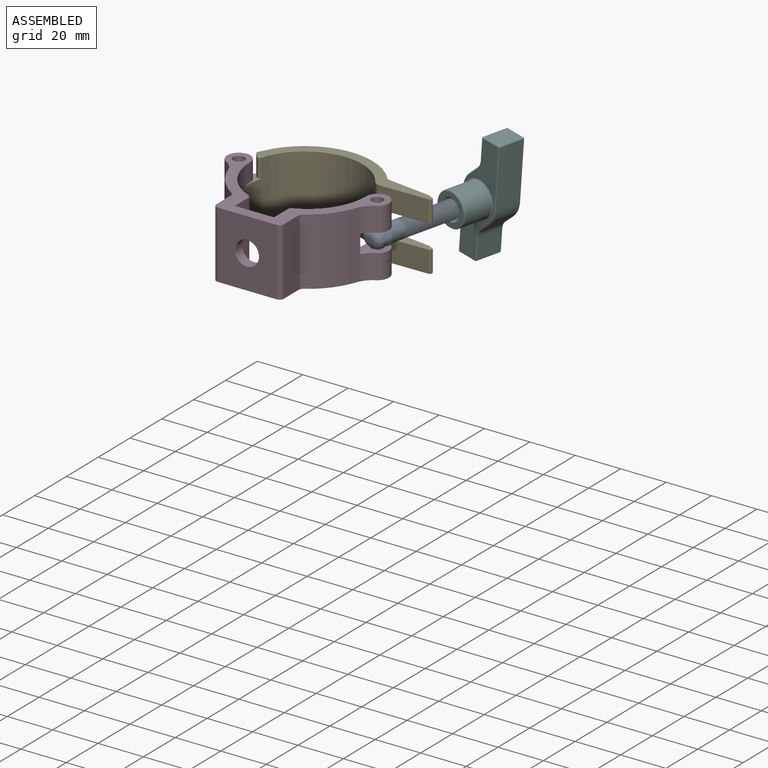
[diagram: assembled view]
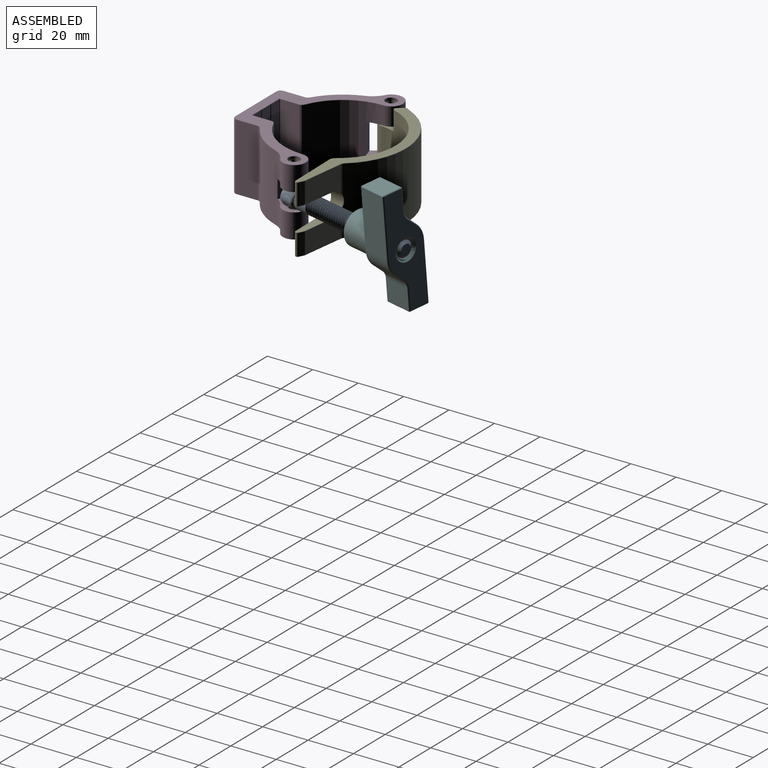
[diagram: assembled view, second angle]
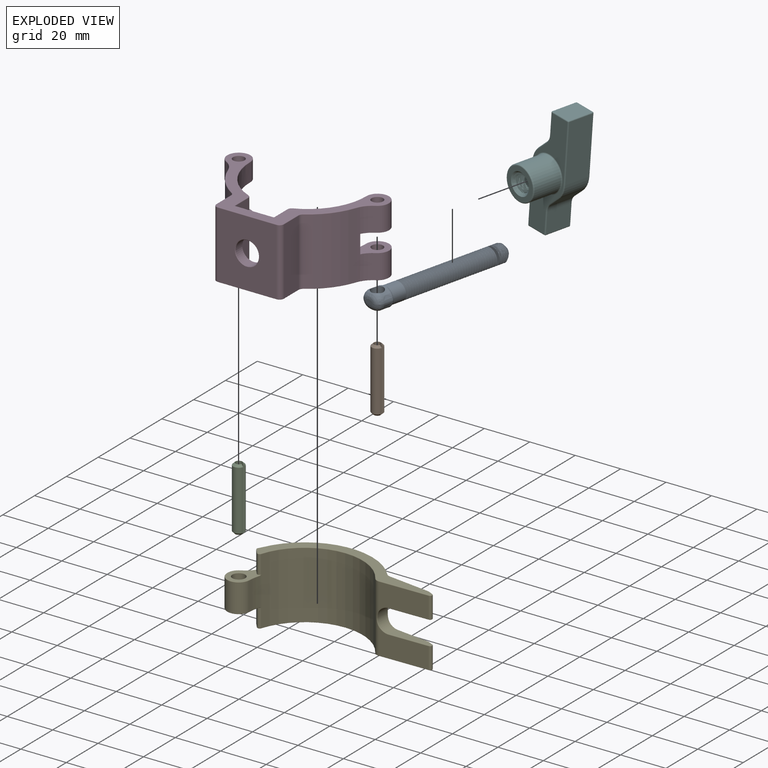
[diagram: exploded view]
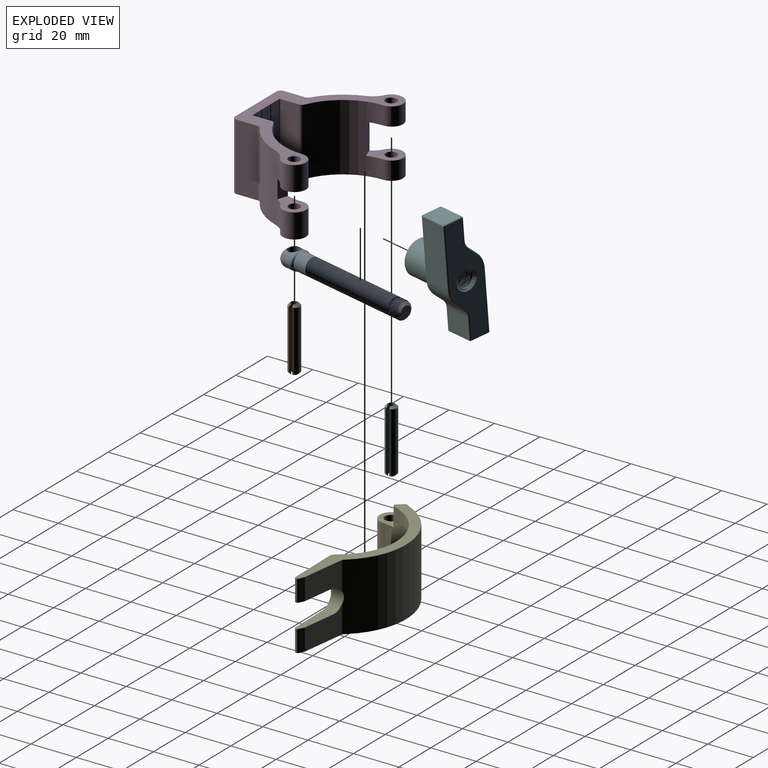
[diagram: exploded view, second angle]
ASSEMBLY  parts=6 mates=5
PART A: 66 faces, bbox 10x65.4x9 mm
  f0: cylinder r=3.9mm len=7.8mm, axis (0,-1,0), area 1.2mm2, adj f1,f38,f64,f65
  f1: cylinder r=3.9mm len=7.8mm, axis (0,-1,0), area 1.2mm2, adj f0,f2,f64,f65
  f2: cylinder r=3.9mm len=7.8mm, axis (0,-1,0), area 1.2mm2, adj f1,f3,f64,f65
  f3: cylinder r=3.9mm len=7.8mm, axis (0,-1,0), area 1.2mm2, adj f2,f4,f64,f65
  f4: cylinder r=3.9mm len=7.8mm, axis (0,-1,0), area 1.2mm2, adj f3,f5,f64,f65
  f5: cylinder r=3.9mm len=7.8mm, axis (0,-1,0), area 1.2mm2, adj f4,f6,f64,f65
  f6: cylinder r=3.9mm len=7.8mm, axis (0,-1,0), area 1.2mm2, adj f5,f7,f64,f65
  f7: cylinder r=3.9mm len=7.8mm, axis (0,-1,0), area 1.2mm2, adj f6,f8,f64,f65
  f8: cylinder r=3.9mm len=7.8mm, axis (0,-1,0), area 1.2mm2, adj f7,f9,f64,f65
  f9: cylinder r=3.9mm len=7.8mm, axis (0,-1,0), area 1.2mm2, adj f8,f10,f64,f65
  f10: cylinder r=3.9mm len=7.8mm, axis (0,-1,0), area 1.2mm2, adj f9,f11,f64,f65
  f11: cylinder r=3.9mm len=7.8mm, axis (0,-1,0), area 1.2mm2, adj f10,f12,f64,f65
  f12: cylinder r=3.9mm len=7.8mm, axis (0,-1,0), area 1.2mm2, adj f11,f13,f64,f65
  f13: cylinder r=3.9mm len=7.8mm, axis (0,-1,0), area 1.2mm2, adj f12,f14,f64,f65
  f14: cylinder r=3.9mm len=7.8mm, axis (0,-1,0), area 1.2mm2, adj f13,f15,f64,f65
  f15: cylinder r=3.9mm len=7.8mm, axis (0,-1,0), area 1.2mm2, adj f14,f16,f64,f65
  f16: cylinder r=3.9mm len=7.8mm, axis (0,-1,0), area 1.2mm2, adj f15,f17,f64,f65
  f17: cylinder r=3.9mm len=7.8mm, axis (0,-1,0), area 1.2mm2, adj f16,f18,f64,f65
  f18: cylinder r=3.9mm len=7.8mm, axis (0,-1,0), area 1.2mm2, adj f17,f19,f64,f65
  f19: cylinder r=3.9mm len=7.8mm, axis (0,-1,0), area 1.2mm2, adj f18,f20,f64,f65
  f20: cylinder r=3.9mm len=7.8mm, axis (0,-1,0), area 1.2mm2, adj f19,f21,f64,f65
  f21: cylinder r=3.9mm len=7.8mm, axis (0,-1,0), area 1.2mm2, adj f20,f22,f64,f65
  f22: cylinder r=3.9mm len=7.8mm, axis (0,-1,0), area 1.2mm2, adj f21,f23,f64,f65
  f23: cylinder r=3.9mm len=7.8mm, axis (0,-1,0), area 1.2mm2, adj f22,f24,f64,f65
  f24: cylinder r=3.9mm len=7.8mm, axis (0,-1,0), area 1.2mm2, adj f23,f25,f64,f65
  f25: cylinder r=3.9mm len=7.8mm, axis (0,-1,0), area 1.2mm2, adj f24,f26,f64,f65
  f26: cylinder r=3.9mm len=7.8mm, axis (0,-1,0), area 1.2mm2, adj f25,f27,f64,f65
  f27: cylinder r=3.9mm len=7.8mm, axis (0,-1,0), area 1.2mm2, adj f26,f28,f64,f65
  f28: cylinder r=3.9mm len=7.8mm, axis (0,-1,0), area 1.2mm2, adj f27,f29,f64,f65
  f29: cylinder r=3.9mm len=7.8mm, axis (0,-1,0), area 1.2mm2, adj f28,f30,f64,f65
  f30: cylinder r=3.9mm len=7.8mm, axis (0,-1,0), area 1.2mm2, adj f29,f31,f64,f65
  f31: cylinder r=3.9mm len=7.8mm, axis (0,-1,0), area 1.2mm2, adj f30,f32,f64,f65
  f32: cylinder r=3.9mm len=7.8mm, axis (0,-1,0), area 1.2mm2, adj f31,f33,f64,f65
  f33: cylinder r=3.9mm len=7.8mm, axis (0,-1,0), area 1.2mm2, adj f32,f34,f64,f65
  f34: cylinder r=3.9mm len=7.8mm, axis (0,-1,0), area 1.2mm2, adj f33,f35,f64,f65
  f35: cylinder r=3.9mm len=7.8mm, axis (0,-1,0), area 1.2mm2, adj f34,f36,f64,f65
  f36: cylinder r=3.9mm len=7.8mm, axis (0,-1,0), area 1.2mm2, adj f35,f37,f64,f65
  f37: cylinder r=3.9mm len=1.17mm, axis (0,-1,0), area 0mm2, adj f36,f61,f64,f65
  f38: cylinder r=3.9mm len=7.8mm, axis (0,-1,0), area 1.2mm2, adj f0,f39,f64,f65
  f39: cylinder r=3.9mm len=7.99mm, axis (0,-1,0), area 158.4mm2, adj f38,f42,f43,f53,f56,f57,f59,f63
  f40: plane 4.8x4.8mm, normal (0,1,0), area 18.1mm2, adj f61
  f41: plane 3.81x1.8mm, normal (0,-1,0), area 5.7mm2, adj f49,f50,f51,f52
  f42: plane 0.6x0.06mm, normal (0,1,0), area 0mm2, adj f39,f54,f55
  f43: plane 0.6x0.06mm, normal (0,1,0), area 0mm2, adj f39,f58,f60
  f44: cylinder r=2.75mm len=7.8mm, axis (0,0,1), area 123.4mm2, adj f45,f46,f47,f48,f49,f50,f51,f52
  f45: bspline ~8.8x5mm, area 20.8mm2, adj f44,f46,f47,f49,f53,f54
  f46: bspline ~8.8x5mm, area 20.8mm2, adj f44,f45,f48,f51,f57,f58
  f47: bspline ~8.8x5mm, area 20.8mm2, adj f44,f45,f48,f50,f55,f56
  f48: bspline ~8.8x5mm, area 20.8mm2, adj f44,f46,f47,f52,f59,f60
  f49: bspline ~5.23x4.5mm, area 22.4mm2, adj f41,f44,f45,f50,f51
  f50: bspline ~5.31x4.45mm, area 22.4mm2, adj f41,f44,f47,f49,f52
  f51: bspline ~5.31x4.45mm, area 22.4mm2, adj f41,f44,f46,f49,f52
  f52: bspline ~5.23x4.5mm, area 22.4mm2, adj f41,f44,f48,f50,f51
  f53: bspline ~4.98x4.2mm, area 4.1mm2, adj f39,f45,f54
  f54: bspline ~1.36x1.15mm, area 0.7mm2, adj f42,f45,f53,f55
  f55: bspline ~1.23x1.14mm, area 0.7mm2, adj f42,f47,f54,f56
  f56: bspline ~4.87x3.6mm, area 6.2mm2, adj f39,f47,f55
  f57: bspline ~4.98x4.2mm, area 4.1mm2, adj f39,f46,f58
  f58: bspline ~1.23x1.14mm, area 0.7mm2, adj f43,f46,f57,f60
  f59: bspline ~4.87x3.6mm, area 6.2mm2, adj f39,f48,f60
  f60: bspline ~1.36x1.15mm, area 0.7mm2, adj f43,f48,f58,f59
  f61: cone r=3.9mm half-angle=45deg, axis (0,-1,0), area 26.6mm2, adj f37,f40,f62,f64,f65
  f62: plane 0.33x0.24mm, normal (0,0,-1), area 0mm2, adj f61,f64,f65
  f63: plane 1.2x1.04mm, normal (0,0,1), area 0.6mm2, adj f39,f64,f65
  f64: bspline ~50.6x9.01mm, area 1005.9mm2, adj f0,f1,f2,f3,f4,f5,f6,f7
  f65: bspline ~50.6x9.01mm, area 1018.7mm2, adj f0,f1,f2,f3,f4,f5,f6,f7
PART B: 8 faces, bbox 4.9x5x28 mm
  f0: cylinder r=1.5mm len=28mm, axis (0,0,-1), area 241.2mm2, adj f1,f3,f4,f5
  f1: plane 28.01x0.95mm, normal (0.35,-0.94,0), area 27.3mm2, adj f0,f2,f4,f5,f6,f7
  f2: cylinder r=2.5mm len=26.2mm, axis (0,0,-1), area 371.6mm2, adj f1,f3,f6,f7
  f3: plane 28.01x0.95mm, normal (0.35,0.94,0), area 27.3mm2, adj f0,f2,f4,f5,f6,f7
  f4: plane 3.2x3.14mm, normal (0,0,1), area 0.9mm2, adj f0,f1,f3,f7
  f5: plane 3.2x3.14mm, normal (0,0,-1), area 0.9mm2, adj f0,f1,f3,f6
  f6: cone r=2.5mm half-angle=45deg, axis (0,0,1), area 14.9mm2, adj f1,f2,f3,f5
  f7: cone r=1.6mm half-angle=45deg, axis (0,0,-1), area 14.9mm2, adj f1,f2,f3,f4
PART C: same geometry as B
PART D: 141 faces, bbox 72.1x44.1x29.8 mm
  f0: cylinder r=5.15mm len=10.65mm, axis (0,0,-1), area 145.2mm2, adj f2,f30,f42,f85
  f1: cylinder r=2.5mm len=10.65mm, axis (0,0,-1), area 167.3mm2, adj f42,f122
  f2: cylinder r=5mm len=10.65mm, axis (0,0,1), area 83.8mm2, adj f0,f19,f42,f90
  f3: cylinder r=5.15mm len=9.68mm, axis (0,0,-1), area 108.4mm2, adj f5,f29,f41,f61
  f4: cylinder r=2.5mm len=7.95mm, axis (0,0,-1), area 124.9mm2, adj f41,f121
  f5: cylinder r=5mm len=7.95mm, axis (0,0,1), area 62.5mm2, adj f3,f11,f41,f65
  f6: cylinder r=0.15mm len=10.4mm, axis (0,0,-1), area 3mm2, adj f110,f116,f119,f129
  f7: cylinder r=0.15mm len=10.4mm, axis (0,0,-1), area 3mm2, adj f87,f96,f97,f137
  f8: plane 10.03x5.23mm, normal (0,1,0), area 50mm2, adj f102,f110,f111,f125
  f9: cylinder r=0.15mm len=10.4mm, axis (0,0,-1), area 3mm2, adj f92,f102,f103,f126
  f10: cylinder r=0.15mm len=10.4mm, axis (0,0,-1), area 3mm2, adj f68,f75,f76,f134
  f11: cylinder r=25.5mm len=29.4mm, axis (0,0,-1), area 786.3mm2, adj f5,f32,f37,f40,f41,f45,f60,f72
  f12: cylinder r=5.15mm len=9.68mm, axis (0,0,-1), area 108.4mm2, adj f29,f37,f40,f52
  f13: cylinder r=30mm len=29.4mm, axis (0,0,-1), area 595.3mm2, adj f29,f31,f47,f53
  f14: plane 29.4x9.23mm, normal (-1,0,0), area 271.3mm2, adj f31,f33,f48,f54
  f15: plane 29.4x25.8mm, normal (0,-1,0), area 668.6mm2, adj f33,f34,f55,f62,f140
  f16: plane 29.4x9.23mm, normal (1,0,0), area 271.3mm2, adj f34,f35,f63,f73
  f17: cylinder r=30mm len=29.4mm, axis (0,0,-1), area 595.3mm2, adj f30,f35,f74,f84
  f18: cylinder r=5.15mm len=10.65mm, axis (0,0,-1), area 145.2mm2, adj f30,f38,f43,f94
  f19: cylinder r=25.5mm len=29.4mm, axis (0,0,-1), area 825.6mm2, adj f2,f36,f38,f42,f43,f44,f95,f104
  f20: plane 29.4x8.23mm, normal (-1,0,0), area 241.8mm2, adj f36,f105,f112,f113
  f21: plane 29.4x5.21mm, normal (0,1,0), area 140.3mm2, adj f97,f106,f113,f117,f119,f133
  f22: plane 10.03x5.23mm, normal (0,1,0), area 50mm2, adj f76,f86,f87,f138
  f23: plane 29.4x5.21mm, normal (0,1,0), area 140.3mm2, adj f68,f70,f82,f92,f93,f130
  f24: cylinder r=2.5mm len=10.65mm, axis (0,0,-1), area 167.3mm2, adj f43,f120
  f25: plane 29.4x8.23mm, normal (1,0,0), area 241.8mm2, adj f32,f71,f82,f83
  f26: cylinder r=2.5mm len=7.95mm, axis (0,0,-1), area 124.9mm2, adj f40,f123
  f27: plane 70.9x43.15mm, normal (0,0,1), area 569.8mm2, adj f46,f47,f48,f49,f51,f52,f55,f56
  f28: plane 70.9x43.15mm, normal (0,0,-1), area 569.8mm2, adj f50,f53,f54,f57,f58,f61,f62,f65
  f29: cylinder r=10mm len=29.4mm, axis (0,0,1), area 138.6mm2, adj f3,f12,f13,f40,f41,f45,f49,f57
  f30: cylinder r=10mm len=29.4mm, axis (0,0,1), area 169.6mm2, adj f0,f17,f18,f42,f43,f44,f80,f89
  f31: cylinder r=2mm len=29.4mm, axis (0,0,-1), area 59.6mm2, adj f13,f14,f46,f50
  f32: cylinder r=2mm len=29.4mm, axis (0,0,-1), area 69.1mm2, adj f11,f25,f64,f78
  f33: cylinder r=2mm len=29.4mm, axis (0,0,-1), area 92.4mm2, adj f14,f15,f51,f58
  f34: cylinder r=2mm len=29.4mm, axis (0,0,-1), area 92.4mm2, adj f15,f16,f59,f66
  f35: cylinder r=2mm len=29.4mm, axis (0,0,-1), area 59.6mm2, adj f16,f17,f67,f79
  f36: cylinder r=2mm len=29.4mm, axis (0,0,-1), area 69.1mm2, adj f19,f20,f100,f108
  f37: cylinder r=5mm len=7.95mm, axis (0,0,1), area 62.5mm2, adj f11,f12,f40,f56
  f38: cylinder r=5mm len=10.65mm, axis (0,0,1), area 83.8mm2, adj f18,f19,f43,f99
  f39: cylinder r=5.15mm len=10.3mm, axis (0,1,0), area 135.9mm2, adj f125,f126,f129,f130,f133,f134,f137,f138
  f40: plane 13.67x11.15mm, normal (0,0,-1), area 84.8mm2, adj f11,f12,f26,f29,f37,f45
  f41: plane 13.67x11.15mm, normal (0,0,1), area 84.8mm2, adj f3,f4,f5,f11,f29,f45
  f42: plane 13.67x11.15mm, normal (0,0,-1), area 84.8mm2, adj f0,f1,f2,f19,f30,f44
  f43: plane 13.67x11.15mm, normal (0,0,1), area 84.8mm2, adj f18,f19,f24,f30,f38,f44
  f44: plane 8.1x4.44mm, normal (0.31,0.95,0), area 37.9mm2, adj f19,f30,f42,f43
  f45: plane 13.5x4.44mm, normal (-0.31,0.95,0), area 63.1mm2, adj f11,f29,f40,f41
  f46: torus R=2.2mm, axis (0,0,1), area 0.7mm2, adj f27,f31,f47,f48
  f47: torus R=29.8mm, axis (0,0,1), area 6.3mm2, adj f13,f27,f46,f49
  f48: cylinder r=0.2mm len=9.23mm, axis (0,1,0), area 2.9mm2, adj f14,f27,f46,f51
  f49: torus R=10.2mm, axis (0,0,1), area 2.3mm2, adj f27,f29,f47,f52
  f50: torus R=2.2mm, axis (0,0,1), area 0.7mm2, adj f28,f31,f53,f54
  f51: torus R=1.8mm, axis (0,0,1), area 1mm2, adj f27,f33,f48,f55
  f52: torus R=4.95mm, axis (0,0,1), area 4.2mm2, adj f12,f27,f49,f56
  f53: torus R=29.8mm, axis (0,0,1), area 6.3mm2, adj f13,f28,f50,f57
  f54: cylinder r=0.2mm len=9.23mm, axis (0,-1,0), area 2.9mm2, adj f14,f28,f50,f58
  f55: cylinder r=0.2mm len=25.8mm, axis (-1,0,0), area 8.1mm2, adj f15,f27,f51,f59
  f56: torus R=4.8mm, axis (0,0,1), area 2.4mm2, adj f27,f37,f52,f60
  f57: torus R=10.2mm, axis (0,0,1), area 2.3mm2, adj f28,f29,f53,f61
  f58: torus R=1.8mm, axis (0,0,1), area 1mm2, adj f28,f33,f54,f62
  f59: torus R=1.8mm, axis (0,0,1), area 1mm2, adj f27,f34,f55,f63
  f60: torus R=25.7mm, axis (0,0,1), area 9.5mm2, adj f11,f27,f56,f64
  f61: torus R=4.95mm, axis (0,0,1), area 4.2mm2, adj f3,f28,f57,f65
  f62: cylinder r=0.2mm len=25.8mm, axis (1,0,0), area 8.1mm2, adj f15,f28,f58,f66
  f63: cylinder r=0.2mm len=9.23mm, axis (0,-1,0), area 2.9mm2, adj f16,f27,f59,f67
  f64: torus R=1.8mm, axis (0,0,1), area 0.7mm2, adj f27,f32,f60,f71
  f65: torus R=4.8mm, axis (0,0,1), area 2.4mm2, adj f5,f28,f61,f72
  f66: torus R=1.8mm, axis (0,0,1), area 1mm2, adj f28,f34,f62,f73
  f67: torus R=2.2mm, axis (0,0,1), area 0.7mm2, adj f27,f35,f63,f74
  f68: cylinder r=0.2mm len=10.4mm, axis (0,0,-1), area 2mm2, adj f10,f23,f69,f132
  f69: sphere r=0.2mm, area 0mm2, adj f68,f70,f75
  f70: cylinder r=0.2mm len=5.21mm, axis (1,0,0), area 1.6mm2, adj f23,f27,f69,f77
  f71: cylinder r=0.2mm len=8.23mm, axis (0,-1,0), area 2.6mm2, adj f25,f27,f64,f77
  f72: torus R=25.7mm, axis (0,0,1), area 9.5mm2, adj f11,f28,f65,f78
  f73: cylinder r=0.2mm len=9.23mm, axis (0,1,0), area 2.9mm2, adj f16,f28,f66,f79
  f74: torus R=29.8mm, axis (0,0,1), area 6.3mm2, adj f17,f27,f67,f80
  f75: torus R=0.35mm, axis (0,0,1), area 0.1mm2, adj f10,f27,f69,f81
  f76: cylinder r=0.2mm len=10.03mm, axis (0,0,-1), area 1.9mm2, adj f10,f22,f81,f136
  f77: torus R=0.4mm, axis (0,0,1), area 0.1mm2, adj f27,f70,f71,f82
  f78: torus R=1.8mm, axis (0,0,1), area 0.7mm2, adj f28,f32,f72,f83
  f79: torus R=2.2mm, axis (0,0,1), area 0.7mm2, adj f28,f35,f73,f84
  f80: torus R=10.2mm, axis (0,0,1), area 2.3mm2, adj f27,f30,f74,f85
  f81: sphere r=0.2mm, area 0mm2, adj f75,f76,f86
  f82: cylinder r=0.2mm len=29.4mm, axis (0,0,1), area 9.2mm2, adj f23,f25,f77,f88
  f83: cylinder r=0.2mm len=8.23mm, axis (0,1,0), area 2.6mm2, adj f25,f28,f78,f88
  f84: torus R=29.8mm, axis (0,0,1), area 6.3mm2, adj f17,f28,f79,f89
  f85: torus R=4.95mm, axis (0,0,1), area 4.2mm2, adj f0,f27,f80,f90
  f86: cylinder r=0.2mm len=5.23mm, axis (1,0,0), area 1.6mm2, adj f22,f27,f81,f91
  f87: cylinder r=0.2mm len=10.03mm, axis (0,0,-1), area 1.9mm2, adj f7,f22,f91,f139
  f88: torus R=0.4mm, axis (0,0,1), area 0.1mm2, adj f28,f82,f83,f93
  f89: torus R=10.2mm, axis (0,0,1), area 2.3mm2, adj f28,f30,f84,f94
  f90: torus R=4.8mm, axis (0,0,1), area 2.4mm2, adj f2,f27,f85,f95
  f91: sphere r=0.2mm, area 0mm2, adj f86,f87,f96
  f92: cylinder r=0.2mm len=10.4mm, axis (0,0,-1), area 2mm2, adj f9,f23,f98,f128
  f93: cylinder r=0.2mm len=5.21mm, axis (-1,0,0), area 1.6mm2, adj f23,f28,f88,f98
  f94: torus R=4.95mm, axis (0,0,1), area 4.2mm2, adj f18,f28,f89,f99
  f95: torus R=25.7mm, axis (0,0,1), area 9.5mm2, adj f19,f27,f90,f100
  f96: torus R=0.35mm, axis (0,0,1), area 0.1mm2, adj f7,f27,f91,f101
  f97: cylinder r=0.2mm len=10.4mm, axis (0,0,-1), area 2mm2, adj f7,f21,f101,f135
  f98: sphere r=0.2mm, area 0mm2, adj f92,f93,f103
  f99: torus R=4.8mm, axis (0,0,1), area 2.4mm2, adj f28,f38,f94,f104
  f100: torus R=1.8mm, axis (0,0,1), area 0.7mm2, adj f27,f36,f95,f105
  f101: sphere r=0.2mm, area 0mm2, adj f96,f97,f106
  f102: cylinder r=0.2mm len=10.03mm, axis (0,0,-1), area 1.9mm2, adj f8,f9,f107,f124
  f103: torus R=0.35mm, axis (0,0,1), area 0.1mm2, adj f9,f28,f98,f107
  f104: torus R=25.7mm, axis (0,0,1), area 9.5mm2, adj f19,f28,f99,f108
  f105: cylinder r=0.2mm len=8.23mm, axis (0,1,0), area 2.6mm2, adj f20,f27,f100,f109
  f106: cylinder r=0.2mm len=5.21mm, axis (1,0,0), area 1.6mm2, adj f21,f27,f101,f109
  f107: sphere r=0.2mm, area 0mm2, adj f102,f103,f111
  f108: torus R=1.8mm, axis (0,0,1), area 0.7mm2, adj f28,f36,f104,f112
  f109: torus R=0.4mm, axis (0,0,1), area 0.1mm2, adj f27,f105,f106,f113
  f110: cylinder r=0.2mm len=10.03mm, axis (0,0,-1), area 1.9mm2, adj f6,f8,f114,f127
  f111: cylinder r=0.2mm len=5.23mm, axis (-1,0,0), area 1.6mm2, adj f8,f28,f107,f114
  f112: cylinder r=0.2mm len=8.23mm, axis (0,-1,0), area 2.6mm2, adj f20,f28,f108,f115
  f113: cylinder r=0.2mm len=29.4mm, axis (0,0,1), area 9.2mm2, adj f20,f21,f109,f115
  f114: sphere r=0.2mm, area 0mm2, adj f110,f111,f116
  f115: torus R=0.4mm, axis (0,0,1), area 0.1mm2, adj f28,f112,f113,f117
  f116: torus R=0.35mm, axis (0,0,1), area 0.1mm2, adj f6,f28,f114,f118
  f117: cylinder r=0.2mm len=5.21mm, axis (-1,0,0), area 1.6mm2, adj f21,f28,f115,f118
  f118: sphere r=0.2mm, area 0mm2, adj f116,f117,f119
  f119: cylinder r=0.2mm len=10.4mm, axis (0,0,-1), area 2mm2, adj f6,f21,f118,f131
  f120: torus R=2.7mm, axis (0,0,1), area 5.1mm2, adj f24,f28
  f121: torus R=2.7mm, axis (0,0,1), area 5.1mm2, adj f4,f28
  f122: torus R=2.7mm, axis (0,0,1), area 5.1mm2, adj f1,f27
  f123: torus R=2.7mm, axis (0,0,1), area 5.1mm2, adj f26,f27
  f124: bspline ~0.26x0.2mm, area 0mm2, adj f102,f125,f126
  f125: cone r=5.35mm half-angle=45deg, axis (0,1,0), area 1.5mm2, adj f8,f39,f124,f127
  f126: bspline ~0.55x0.53mm, area 0.2mm2, adj f9,f39,f124,f128
  f127: bspline ~0.26x0.2mm, area 0mm2, adj f110,f125,f129
  f128: bspline ~0.2x0.16mm, area 0mm2, adj f92,f126,f130
  f129: bspline ~0.55x0.53mm, area 0.2mm2, adj f6,f39,f127,f131
  f130: cone r=5.35mm half-angle=45deg, axis (0,1,0), area 2.8mm2, adj f23,f39,f128,f132
  f131: bspline ~0.2x0.16mm, area 0mm2, adj f119,f129,f133
  f132: bspline ~0.2x0.16mm, area 0mm2, adj f68,f130,f134
  f133: cone r=5.35mm half-angle=45deg, axis (0,1,0), area 2.8mm2, adj f21,f39,f131,f135
  f134: bspline ~0.55x0.53mm, area 0.2mm2, adj f10,f39,f132,f136
  f135: bspline ~0.2x0.16mm, area 0mm2, adj f97,f133,f137
  f136: bspline ~0.26x0.2mm, area 0mm2, adj f76,f134,f138
  f137: bspline ~0.55x0.53mm, area 0.2mm2, adj f7,f39,f135,f139
  f138: cone r=5.35mm half-angle=45deg, axis (0,1,0), area 1.5mm2, adj f22,f39,f136,f139
  f139: bspline ~0.26x0.2mm, area 0mm2, adj f87,f137,f138
  f140: cone r=5.35mm half-angle=45deg, axis (0,-1,0), area 9.3mm2, adj f15,f39
PART E: 99 faces, bbox 81.5x38x29.8 mm
  f0: plane 8.1x2.31mm, normal (-0.73,-0.68,0), area 25.7mm2, adj f30,f31,f48,f62
  f1: plane 18.78x10.88mm, normal (0.06,1,0), area 177.7mm2, adj f6,f18,f70,f91,f93
  f2: plane 21.52x11.45mm, normal (0.09,-1,0), area 204.7mm2, adj f3,f19,f69,f92,f94
  f3: cylinder r=1mm len=9.35mm, axis (0,0,-1), area 13.9mm2, adj f2,f5,f67,f96
  f4: plane 9.35x2.22mm, normal (0.37,0.93,0), area 22.3mm2, adj f5,f6,f66,f97
  f5: cylinder r=1mm len=9.35mm, axis (0,0,-1), area 10.2mm2, adj f3,f4,f65,f98
  f6: cylinder r=1mm len=9.35mm, axis (0,0,-1), area 2.9mm2, adj f1,f4,f68,f95
  f7: plane 18.78x10.88mm, normal (0.06,1,0), area 177.7mm2, adj f17,f18,f57,f85,f87
  f8: cylinder r=30mm len=49.55mm, axis (0,0,-1), area 1772.8mm2, adj f18,f27,f61,f74
  f9: plane 8.1x2.31mm, normal (-0.73,-0.68,0), area 25.7mm2, adj f29,f32,f40,f77
  f10: cylinder r=25.5mm len=45.77mm, axis (0,0,-1), area 1767.3mm2, adj f19,f28,f31,f32,f37,f39,f47,f49
  f11: plane 21.52x11.45mm, normal (0.09,-1,0), area 204.7mm2, adj f14,f19,f54,f86,f88
  f12: plane 73.9x24.47mm, normal (0,0,1), area 343.5mm2, adj f65,f66,f67,f68,f69,f70,f71,f72
  f13: plane 73.9x24.47mm, normal (0,0,-1), area 343.5mm2, adj f51,f52,f53,f54,f55,f56,f57,f58
  f14: cylinder r=1mm len=9.35mm, axis (0,0,-1), area 13.9mm2, adj f11,f16,f52,f84
  f15: plane 9.35x2.22mm, normal (0.37,0.93,0), area 22.3mm2, adj f16,f17,f53,f81
  f16: cylinder r=1mm len=9.35mm, axis (0,0,-1), area 10.2mm2, adj f14,f15,f51,f82
  f17: cylinder r=1mm len=9.35mm, axis (0,0,-1), area 2.9mm2, adj f7,f15,f55,f83
  f18: cylinder r=3mm len=29.4mm, axis (0,0,-1), area 56.7mm2, adj f1,f7,f8,f59,f72,f89
  f19: cylinder r=3mm len=29.4mm, axis (0,0,-1), area 83.5mm2, adj f2,f10,f11,f56,f71,f90
  f20: plane 18x4.78mm, normal (0,0,-1), area 60.7mm2, adj f22,f93,f94,f95,f96,f97,f98
  f21: plane 18x4.78mm, normal (0,0,1), area 60.7mm2, adj f22,f81,f82,f83,f84,f85,f86
  f22: cylinder r=5.15mm len=10.3mm, axis (0,-1,0), area 86.4mm2, adj f20,f21,f87,f88,f89,f90,f91,f92
  f23: cylinder r=5.15mm len=12.4mm, axis (0,0,-1), area 166.2mm2, adj f27,f28,f33,f43
  f24: plane 13.03x10.26mm, normal (0,0,1), area 61.9mm2, adj f33,f34,f35,f37,f38,f40,f41,f79
  f25: plane 13.03x10.26mm, normal (0,0,-1), area 61.9mm2, adj f42,f43,f45,f46,f47,f48,f50,f80
  f26: cylinder r=2.8mm len=12.4mm, axis (0,0,-1), area 218.2mm2, adj f79,f80
  f27: cylinder r=12mm len=29.4mm, axis (0,0,1), area 129.7mm2, adj f8,f23,f29,f30,f34,f36,f42,f44
  f28: cylinder r=5mm len=12.4mm, axis (0,0,1), area 97.5mm2, adj f10,f23,f35,f45
  f29: cylinder r=1mm len=8.1mm, axis (0,0,1), area 10.2mm2, adj f9,f27,f38,f78
  f30: cylinder r=1mm len=8.1mm, axis (0,0,1), area 10.2mm2, adj f0,f27,f46,f64
  f31: cylinder r=1mm len=8.1mm, axis (0,0,-1), area 17.4mm2, adj f0,f10,f50,f60
  f32: cylinder r=1mm len=8.1mm, axis (0,0,-1), area 17.4mm2, adj f9,f10,f41,f75
  f33: torus R=4.95mm, axis (0,0,1), area 4.2mm2, adj f23,f24,f34,f35
  f34: torus R=12.2mm, axis (0,0,1), area 1.7mm2, adj f24,f27,f33,f36
  f35: torus R=4.8mm, axis (0,0,1), area 2.4mm2, adj f24,f28,f33,f37
  f36: bspline ~0.93x0.51mm, area 0.1mm2, adj f27,f34,f38
  f37: torus R=25.7mm, axis (0,0,1), area 1.6mm2, adj f10,f24,f35,f39
  f38: torus R=1.2mm, axis (0,0,1), area 0.3mm2, adj f24,f29,f36,f40
  f39: bspline ~0.98x0.43mm, area 0.1mm2, adj f10,f37,f41
  f40: cylinder r=0.2mm len=2.45mm, axis (0.68,-0.73,0), area 1mm2, adj f9,f24,f38,f41
  f41: torus R=1.2mm, axis (0,0,1), area 0.6mm2, adj f24,f32,f39,f40
  f42: torus R=12.2mm, axis (0,0,1), area 1.7mm2, adj f25,f27,f43,f44
  f43: torus R=4.95mm, axis (0,0,1), area 4.2mm2, adj f23,f25,f42,f45
  f44: bspline ~0.93x0.51mm, area 0.1mm2, adj f27,f42,f46
  f45: torus R=4.8mm, axis (0,0,1), area 2.4mm2, adj f25,f28,f43,f47
  f46: torus R=1.2mm, axis (0,0,1), area 0.3mm2, adj f25,f30,f44,f48
  f47: torus R=25.7mm, axis (0,0,1), area 1.6mm2, adj f10,f25,f45,f49
  f48: cylinder r=0.2mm len=2.45mm, axis (-0.68,0.73,0), area 1mm2, adj f0,f25,f46,f50
  f49: bspline ~0.98x0.43mm, area 0.1mm2, adj f10,f47,f50
  f50: torus R=1.2mm, axis (0,0,1), area 0.6mm2, adj f25,f31,f48,f49
  f51: torus R=0.8mm, axis (0,0,1), area 0.3mm2, adj f13,f16,f52,f53
  f52: torus R=0.8mm, axis (0,0,1), area 0.4mm2, adj f13,f14,f51,f54
  f53: cylinder r=0.2mm len=2.29mm, axis (0.93,-0.37,0), area 0.7mm2, adj f13,f15,f51,f55
  f54: cylinder r=0.2mm len=21.54mm, axis (1,0.09,0), area 6.8mm2, adj f11,f13,f52,f56
  f55: torus R=0.8mm, axis (0,0,1), area 0.1mm2, adj f13,f17,f53,f57
  f56: torus R=2.8mm, axis (0,0,1), area 0.9mm2, adj f13,f19,f54,f58
  f57: cylinder r=0.2mm len=18.8mm, axis (-1,0.06,0), area 5.9mm2, adj f7,f13,f55,f59
  f58: torus R=25.7mm, axis (0,0,1), area 18.1mm2, adj f10,f13,f56,f60
  f59: torus R=3.2mm, axis (0,0,1), area 0.7mm2, adj f13,f18,f57,f61
  f60: torus R=0.8mm, axis (0,0,1), area 0.6mm2, adj f13,f31,f58,f62
  f61: torus R=29.8mm, axis (0,0,1), area 18.9mm2, adj f8,f13,f59,f63
  f62: cylinder r=0.2mm len=2.45mm, axis (0.68,-0.73,0), area 1mm2, adj f0,f13,f60,f64
  f63: torus R=12.2mm, axis (0,0,1), area 0.5mm2, adj f13,f27,f61,f64
  f64: torus R=0.8mm, axis (0,0,1), area 0.4mm2, adj f13,f30,f62,f63
  f65: torus R=0.8mm, axis (0,0,1), area 0.3mm2, adj f5,f12,f66,f67
  f66: cylinder r=0.2mm len=2.29mm, axis (0.93,-0.37,0), area 0.7mm2, adj f4,f12,f65,f68
  f67: torus R=0.8mm, axis (0,0,1), area 0.4mm2, adj f3,f12,f65,f69
  f68: torus R=0.8mm, axis (0,0,1), area 0.1mm2, adj f6,f12,f66,f70
  f69: cylinder r=0.2mm len=21.54mm, axis (-1,-0.09,0), area 6.8mm2, adj f2,f12,f67,f71
  f70: cylinder r=0.2mm len=18.8mm, axis (1,-0.06,0), area 5.9mm2, adj f1,f12,f68,f72
  f71: torus R=2.8mm, axis (0,0,1), area 0.9mm2, adj f12,f19,f69,f73
  f72: torus R=3.2mm, axis (0,0,1), area 0.7mm2, adj f12,f18,f70,f74
  f73: torus R=25.7mm, axis (0,0,1), area 18.1mm2, adj f10,f12,f71,f75
  f74: torus R=29.8mm, axis (0,0,1), area 18.9mm2, adj f8,f12,f72,f76
  f75: torus R=0.8mm, axis (0,0,1), area 0.6mm2, adj f12,f32,f73,f77
  f76: torus R=12.2mm, axis (0,0,1), area 0.5mm2, adj f12,f27,f74,f78
  f77: cylinder r=0.2mm len=2.45mm, axis (-0.68,0.73,0), area 1mm2, adj f9,f12,f75,f78
  f78: torus R=0.8mm, axis (0,0,1), area 0.4mm2, adj f12,f29,f76,f77
  f79: torus R=3mm, axis (0,0,1), area 5.7mm2, adj f24,f26
  f80: torus R=3mm, axis (0,0,1), area 5.7mm2, adj f25,f26
  f81: cylinder r=0.2mm len=2.29mm, axis (-0.93,0.37,0), area 0.7mm2, adj f15,f21,f82,f83
  f82: torus R=0.8mm, axis (0,0,-1), area 0.3mm2, adj f16,f21,f81,f84
  f83: torus R=0.8mm, axis (0,0,-1), area 0.1mm2, adj f17,f21,f81,f85
  f84: torus R=0.8mm, axis (0,0,-1), area 0.4mm2, adj f14,f21,f82,f86
  f85: cylinder r=0.2mm len=15.05mm, axis (1,-0.06,0), area 4.7mm2, adj f7,f21,f83,f87
  f86: cylinder r=0.2mm len=17.29mm, axis (-1,-0.09,0), area 5.4mm2, adj f11,f21,f84,f88
  f87: bspline ~4.88x1.87mm, area 1.3mm2, adj f7,f22,f85,f89
  f88: bspline ~4.25x2.22mm, area 1.5mm2, adj f11,f22,f86,f90
  f89: bspline ~8.65x2.2mm, area 2mm2, adj f18,f22,f87,f91
  f90: bspline ~7.68x1.84mm, area 2.4mm2, adj f19,f22,f88,f92
  f91: bspline ~4.88x1.87mm, area 1.3mm2, adj f1,f22,f89,f93
  f92: bspline ~4.25x2.22mm, area 1.5mm2, adj f2,f22,f90,f94
  f93: cylinder r=0.2mm len=15.05mm, axis (-1,0.06,0), area 4.7mm2, adj f1,f20,f91,f95
  f94: cylinder r=0.2mm len=17.29mm, axis (1,0.09,0), area 5.4mm2, adj f2,f20,f92,f96
  f95: torus R=0.8mm, axis (0,0,-1), area 0.1mm2, adj f6,f20,f93,f97
  f96: torus R=0.8mm, axis (0,0,-1), area 0.4mm2, adj f3,f20,f94,f98
  f97: cylinder r=0.2mm len=2.29mm, axis (0.93,-0.37,0), area 0.7mm2, adj f4,f20,f95,f98
  f98: torus R=0.8mm, axis (0,0,-1), area 0.3mm2, adj f5,f20,f96,f97
PART F: 60 faces, bbox 19.6x26x51 mm
  f0: plane 11.3x8.5mm, normal (0,0,1), area 96mm2, adj f40,f41,f47,f48
  f1: plane 11.3x9.29mm, normal (-1,0,0), area 104.9mm2, adj f15,f42,f48,f52
  f2: plane 11.3x4.11mm, normal (-0.71,0,0.71), area 65.6mm2, adj f13,f15,f32,f49
  f3: plane 26x11.3mm, normal (-1,0,0), area 293.8mm2, adj f13,f21,f33,f43
  f4: plane 11.3x8.5mm, normal (0,0,-1), area 96mm2, adj f22,f23,f33,f34
  f5: plane 11.3x9.29mm, normal (1,0,0), area 104.9mm2, adj f16,f17,f23,f24
  f6: plane 11.3x4.11mm, normal (0.71,0,-0.71), area 65.6mm2, adj f14,f16,f20,f30
  f7: plane 26x11.3mm, normal (1,0,0), area 293.8mm2, adj f14,f31,f39,f40
  f8: plane 50x17mm, normal (0,-1,0), area 377.5mm2, adj f17,f18,f20,f21,f22,f26,f27,f31
  f9: plane 50x17mm, normal (0,1,0), area 503.1mm2, adj f24,f25,f30,f34,f35,f39,f43,f46
  f10: cylinder r=7.5mm len=15mm, axis (0,1,0), area 589mm2, adj f53,f54
  f11: plane 14x14mm, normal (0,-1,0), area 78.5mm2, adj f54,f55
  f12: cylinder r=3.4mm len=22.8mm, axis (0,1,0), area 7.2mm2, adj f55,f56,f58,f59
  f13: cylinder r=10mm len=11.3mm, axis (0,1,0), area 88.7mm2, adj f2,f3,f27,f46
  f14: cylinder r=10mm len=11.3mm, axis (0,-1,0), area 88.7mm2, adj f6,f7,f26,f35
  f15: cylinder r=5mm len=11.3mm, axis (0,-1,0), area 44.4mm2, adj f1,f2,f37,f51
  f16: cylinder r=5mm len=11.3mm, axis (0,1,0), area 44.4mm2, adj f5,f6,f18,f25
  f17: cylinder r=0.5mm len=9.29mm, axis (0,0,-1), area 7.3mm2, adj f5,f8,f18,f19
  f18: torus R=5.5mm, axis (0,-1,0), area 3.2mm2, adj f8,f16,f17,f20
  f19: sphere r=0.5mm, area 0.4mm2, adj f17,f22,f23
  f20: cylinder r=0.5mm len=4.46mm, axis (-0.71,0,-0.71), area 4.6mm2, adj f6,f8,f18,f26
  f21: cylinder r=0.5mm len=26mm, axis (0,0,1), area 20.4mm2, adj f3,f8,f27,f28
  f22: cylinder r=0.5mm len=8.5mm, axis (-1,0,0), area 6.7mm2, adj f4,f8,f19,f28
  f23: cylinder r=0.5mm len=11.3mm, axis (0,1,0), area 8.9mm2, adj f4,f5,f19,f29
  f24: cylinder r=0.5mm len=9.29mm, axis (0,0,1), area 7.3mm2, adj f5,f9,f25,f29
  f25: torus R=5.5mm, axis (0,-1,0), area 3.2mm2, adj f9,f16,f24,f30
  f26: torus R=9.5mm, axis (0,-1,0), area 6.1mm2, adj f8,f14,f20,f31
  f27: torus R=9.5mm, axis (0,-1,0), area 6.1mm2, adj f8,f13,f21,f32
  f28: sphere r=0.5mm, area 0.4mm2, adj f21,f22,f33
  f29: sphere r=0.5mm, area 0.2mm2, adj f23,f24,f34
  f30: cylinder r=0.5mm len=4.46mm, axis (0.71,0,0.71), area 4.6mm2, adj f6,f9,f25,f35
  f31: cylinder r=0.5mm len=26mm, axis (0,0,-1), area 20.4mm2, adj f7,f8,f26,f36
  f32: cylinder r=0.5mm len=4.46mm, axis (0.71,0,0.71), area 4.6mm2, adj f2,f8,f27,f37
  f33: cylinder r=0.5mm len=11.3mm, axis (0,-1,0), area 8.9mm2, adj f3,f4,f28,f38
  f34: cylinder r=0.5mm len=8.5mm, axis (1,0,0), area 6.7mm2, adj f4,f9,f29,f38
  f35: torus R=9.5mm, axis (0,-1,0), area 6.1mm2, adj f9,f14,f30,f39
  f36: sphere r=0.5mm, area 0.4mm2, adj f31,f40,f41
  f37: torus R=5.5mm, axis (0,-1,0), area 3.2mm2, adj f8,f15,f32,f42
  f38: sphere r=0.5mm, area 0.2mm2, adj f33,f34,f43
  f39: cylinder r=0.5mm len=26mm, axis (0,0,1), area 20.4mm2, adj f7,f9,f35,f44
  f40: cylinder r=0.5mm len=11.3mm, axis (0,-1,0), area 8.9mm2, adj f0,f7,f36,f44
  f41: cylinder r=0.5mm len=8.5mm, axis (1,0,0), area 6.7mm2, adj f0,f8,f36,f45
  f42: cylinder r=0.5mm len=9.29mm, axis (0,0,1), area 7.3mm2, adj f1,f8,f37,f45
  f43: cylinder r=0.5mm len=26mm, axis (0,0,-1), area 20.4mm2, adj f3,f9,f38,f46
  f44: sphere r=0.5mm, area 0.2mm2, adj f39,f40,f47
  f45: sphere r=0.5mm, area 0.4mm2, adj f41,f42,f48
  f46: torus R=9.5mm, axis (0,-1,0), area 6.1mm2, adj f9,f13,f43,f49
  f47: cylinder r=0.5mm len=8.5mm, axis (-1,0,0), area 6.7mm2, adj f0,f9,f44,f50
  f48: cylinder r=0.5mm len=11.3mm, axis (0,1,0), area 8.9mm2, adj f0,f1,f45,f50
  f49: cylinder r=0.5mm len=4.46mm, axis (-0.71,0,-0.71), area 4.6mm2, adj f2,f9,f46,f51
  f50: sphere r=0.5mm, area 0.5mm2, adj f47,f48,f52
  f51: torus R=5.5mm, axis (0,-1,0), area 3.2mm2, adj f9,f15,f49,f52
  f52: cylinder r=0.5mm len=9.29mm, axis (0,0,-1), area 7.3mm2, adj f1,f9,f50,f51
  f53: torus R=8mm, axis (0,-1,0), area 37.9mm2, adj f8,f10
  f54: torus R=7mm, axis (0,-1,0), area 36.1mm2, adj f10,f11
  f55: cone r=4.9mm half-angle=45deg, axis (0,-1,0), area 39.2mm2, adj f11,f12,f57,f58,f59
  f56: cone r=3.4mm half-angle=45deg, axis (0,1,0), area 38.7mm2, adj f9,f12,f58,f59
  f57: plane 0.33x0.24mm, normal (0,0,1), area 0mm2, adj f55,f58,f59
  f58: bspline ~25.39x10.25mm, area 565.1mm2, adj f12,f55,f56,f57,f59
  f59: bspline ~25.39x10.25mm, area 567.8mm2, adj f12,f55,f56,f57,f58
PLACE A rot(axis=(0,0,-1),13.7deg) t=(28.69,20.85,-17.45)mm
PLACE B t=(29.64,24.73,-17.45)mm
PLACE C t=(-31.36,24.73,-17.45)mm
PLACE D t=(-0.86,24.73,-17.45)mm fixed
PLACE E rot(axis=(0,0,-1),4deg) t=(-0.94,22.6,-17.45)mm
PLACE F rot(axis=(0.04,0.33,-0.94),14.5deg) t=(-3.38,49.21,-14.22)mm
MATE fastened C.f2 <-> D.f3  axis (0,0,-1) through (-31.36,24.73,-17.45)mm
MATE revolute E.f23 <-> D.f3  axis (0,0,-1) through (-31.36,24.73,-17.45)mm
MATE cylindrical F.f12 <-> A.f0  axis (0.24,0.97,0) through (44.04,83.99,-17.45)mm
MATE fastened B.f2 <-> D.f1  axis (0,0,-1) through (29.64,24.73,-17.45)mm
MATE revolute D.f1 <-> A.f44  axis (0,0,-1) through (29.64,24.73,-17.45)mm
